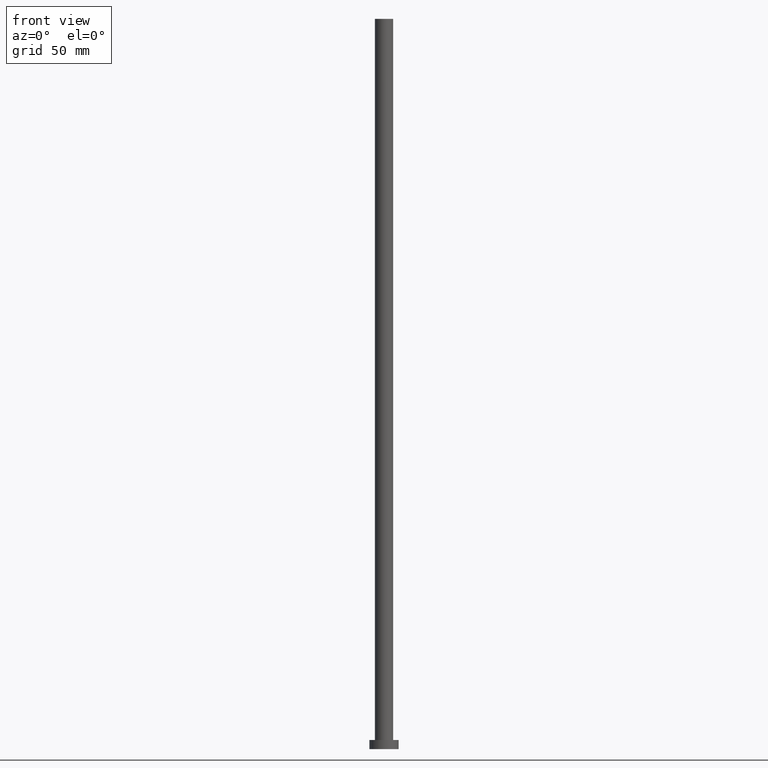
[diagram: clean part render]
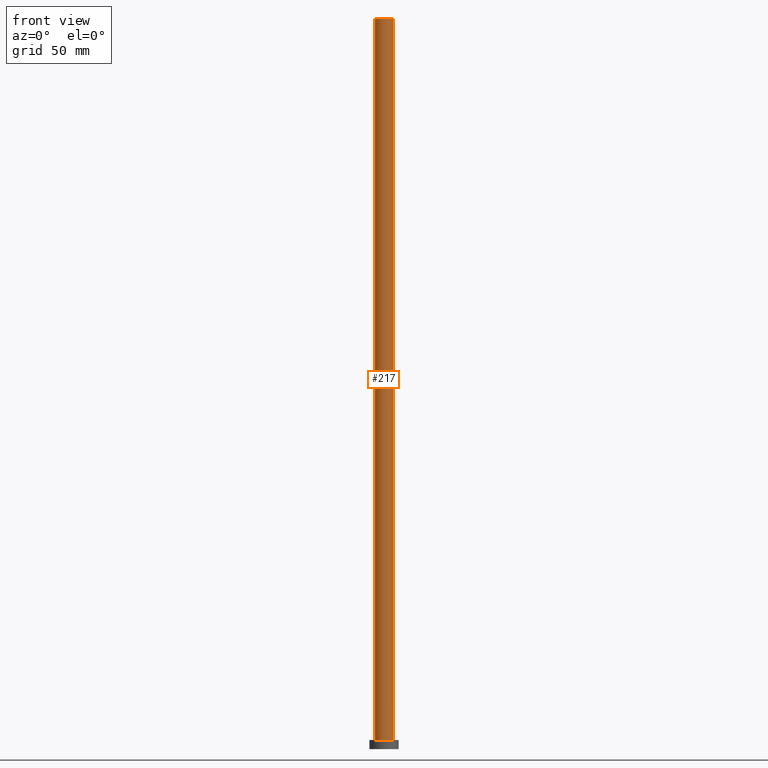
[diagram: same view with one face highlighted and labeled with its STEP entity id]
A machine part, front view. The second image highlights one B-rep face of the part: STEP entity #217.
In plain terms, the highlighted cylindrical surface (edge-blend (fillet) strip) has radius 5 mm, axis along (-0, -0, -1).
Its self-contained STEP definition (entity closure, byte-faithful):
#15 = DIRECTION ( 'NONE',  ( 1.000000000000000000, 0.000000000000000000, 0.000000000000000000 ) ) ;
#27 = AXIS2_PLACEMENT_3D ( 'NONE', #95, #35, #15 ) ;
#35 = DIRECTION ( 'NONE',  ( 0.000000000000000000, 0.000000000000000000, 1.000000000000000000 ) ) ;
#46 = DIRECTION ( 'NONE',  ( 1.000000000000000000, 0.000000000000000000, 0.000000000000000000 ) ) ;
#59 = ORIENTED_EDGE ( 'NONE', *, *, #249, .F. ) ;
#64 = DIRECTION ( 'NONE',  ( -0.000000000000000000, -0.000000000000000000, -1.000000000000000000 ) ) ;
#70 = AXIS2_PLACEMENT_3D ( 'NONE', #109, #166, #46 ) ;
#74 = CYLINDRICAL_SURFACE ( 'NONE', #198, 5.000000000000000888 ) ;
#81 = VERTEX_POINT ( 'NONE', #243 ) ;
#89 = CARTESIAN_POINT ( 'NONE',  ( 5.000000000000000888, 6.123233995736766282E-16, 5.000000000000000000 ) ) ;
#95 = CARTESIAN_POINT ( 'NONE',  ( 0.000000000000000000, 0.000000000000000000, 400.0000000000000000 ) ) ;
#100 = ORIENTED_EDGE ( 'NONE', *, *, #118, .T. ) ;
#109 = CARTESIAN_POINT ( 'NONE',  ( 0.000000000000000000, 0.000000000000000000, 5.000000000000000000 ) ) ;
#115 = DIRECTION ( 'NONE',  ( -0.000000000000000000, -0.000000000000000000, -1.000000000000000000 ) ) ;
#118 = EDGE_CURVE ( 'NONE', #137, #121, #227, .T. ) ;
#119 = ORIENTED_EDGE ( 'NONE', *, *, #133, .F. ) ;
#121 = VERTEX_POINT ( 'NONE', #89 ) ;
#125 = CARTESIAN_POINT ( 'NONE',  ( -5.000000000000000888, 0.000000000000000000, 5.000000000000000000 ) ) ;
#133 = EDGE_CURVE ( 'NONE', #81, #121, #208, .T. ) ;
#135 = FACE_OUTER_BOUND ( 'NONE', #224, .T. ) ;
#137 = VERTEX_POINT ( 'NONE', #125 ) ;
#139 = CIRCLE ( 'NONE', #27, 5.000000000000000888 ) ;
#158 = VERTEX_POINT ( 'NONE', #252 ) ;
#166 = DIRECTION ( 'NONE',  ( 0.000000000000000000, 0.000000000000000000, 1.000000000000000000 ) ) ;
#167 = LINE ( 'NONE', #193, #222 ) ;
#170 = DIRECTION ( 'NONE',  ( -0.000000000000000000, -0.000000000000000000, -1.000000000000000000 ) ) ;
#193 = CARTESIAN_POINT ( 'NONE',  ( -5.000000000000000888, 0.000000000000000000, 400.0000000000000000 ) ) ;
#198 = AXIS2_PLACEMENT_3D ( 'NONE', #218, #115, #234 ) ;
#202 = ORIENTED_EDGE ( 'NONE', *, *, #233, .T. ) ;
#208 = LINE ( 'NONE', #231, #250 ) ;
#217 = ADVANCED_FACE ( 'NONE', ( #135 ), #74, .T. ) ;
#218 = CARTESIAN_POINT ( 'NONE',  ( 0.000000000000000000, 0.000000000000000000, 400.0000000000000000 ) ) ;
#222 = VECTOR ( 'NONE', #170, 1000.000000000000000 ) ;
#224 = EDGE_LOOP ( 'NONE', ( #119, #59, #202, #100 ) ) ;
#227 = CIRCLE ( 'NONE', #70, 5.000000000000000888 ) ;
#231 = CARTESIAN_POINT ( 'NONE',  ( 5.000000000000000888, 6.123233995736766282E-16, 400.0000000000000000 ) ) ;
#233 = EDGE_CURVE ( 'NONE', #158, #137, #167, .T. ) ;
#234 = DIRECTION ( 'NONE',  ( -1.000000000000000000, 0.000000000000000000, 0.000000000000000000 ) ) ;
#243 = CARTESIAN_POINT ( 'NONE',  ( 5.000000000000000888, 6.123233995736766282E-16, 400.0000000000000000 ) ) ;
#249 = EDGE_CURVE ( 'NONE', #158, #81, #139, .T. ) ;
#250 = VECTOR ( 'NONE', #64, 1000.000000000000000 ) ;
#252 = CARTESIAN_POINT ( 'NONE',  ( -5.000000000000000888, 0.000000000000000000, 400.0000000000000000 ) ) ;